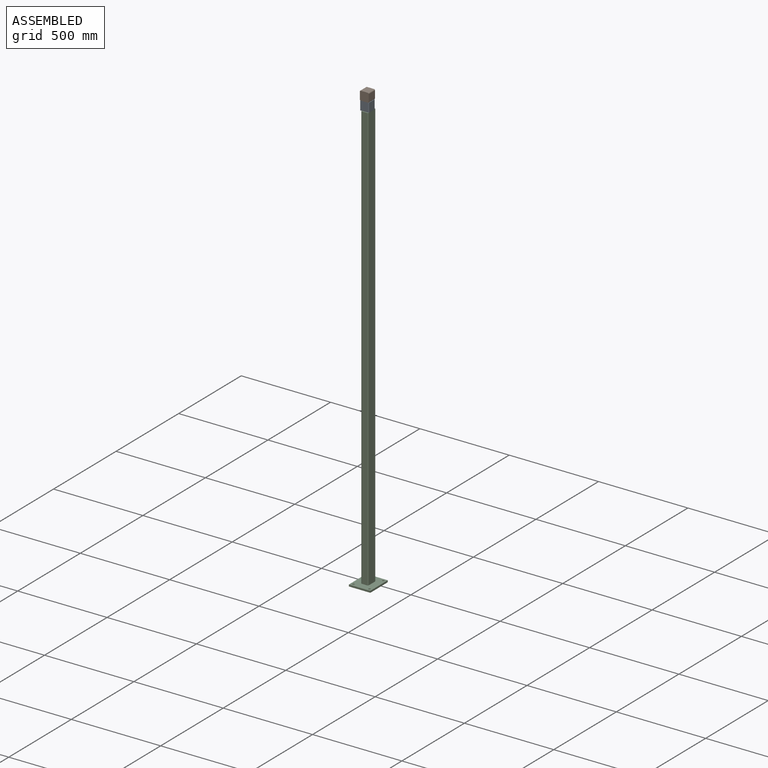
[diagram: assembled view]
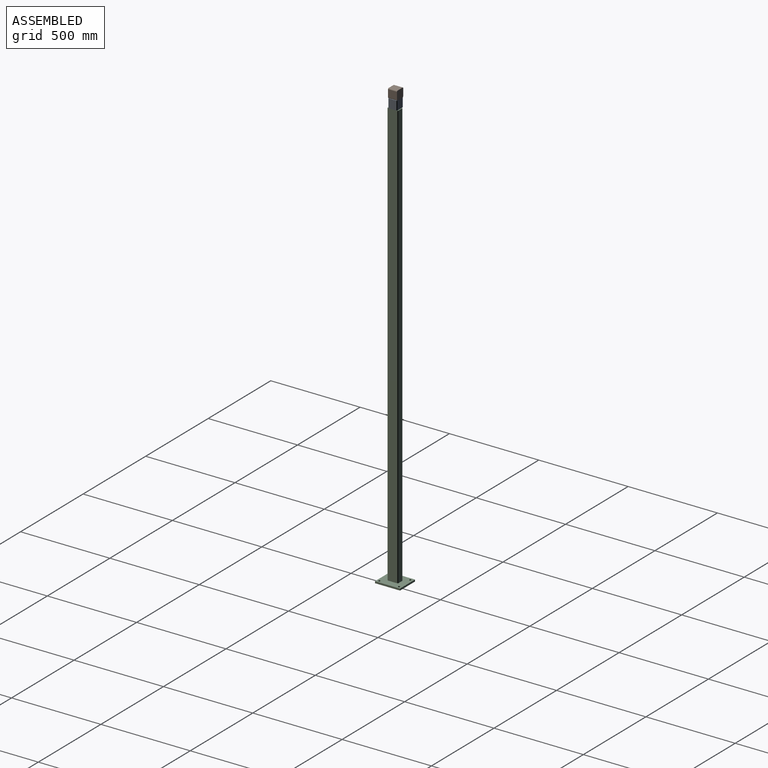
[diagram: assembled view, second angle]
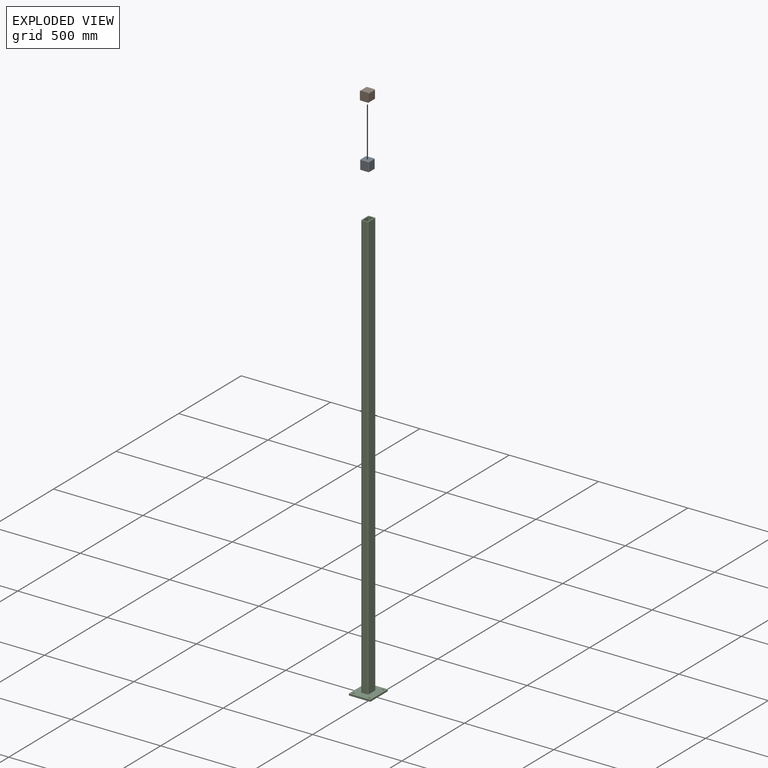
[diagram: exploded view]
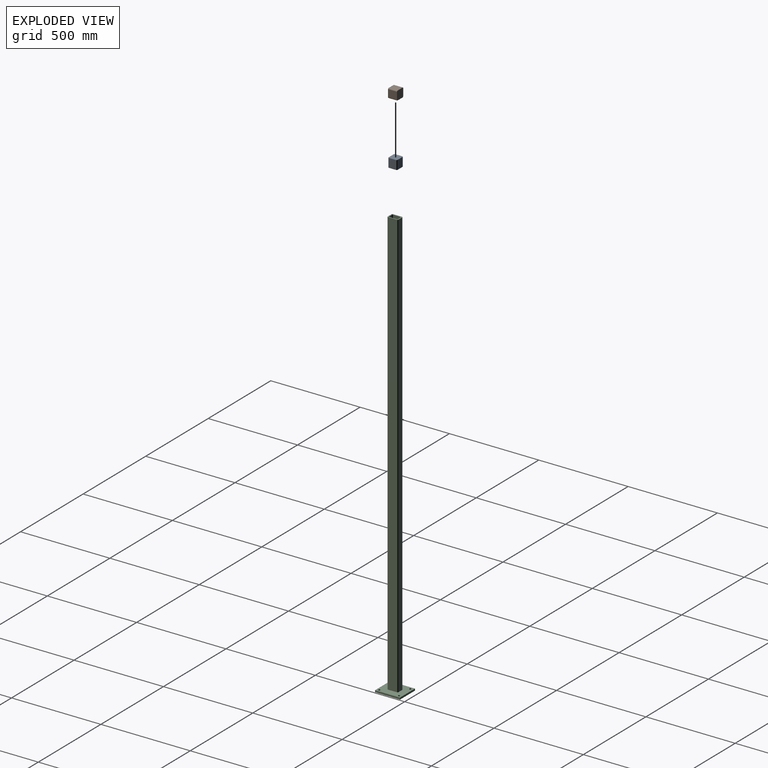
[diagram: exploded view, second angle]
ASSEMBLY  parts=3 mates=3
PART A: 10 faces, bbox 50x50x50 mm
  f0: cylinder r=5mm len=50mm, axis (0,0,-1), area 392.7mm2, adj f1,f7,f8,f9
  f1: plane 50x40mm, normal (0,-1,0), area 2000mm2, adj f0,f2,f8,f9
  f2: cylinder r=5mm len=50mm, axis (0,0,-1), area 392.7mm2, adj f1,f3,f8,f9
  f3: plane 50x40mm, normal (1,0,0), area 2000mm2, adj f2,f4,f8,f9
  f4: cylinder r=5mm len=50mm, axis (0,0,-1), area 392.7mm2, adj f3,f5,f8,f9
  f5: plane 50x40mm, normal (0,1,0), area 2000mm2, adj f4,f6,f8,f9
  f6: cylinder r=5mm len=50mm, axis (0,0,-1), area 392.7mm2, adj f5,f7,f8,f9
  f7: plane 50x40mm, normal (-1,0,0), area 2000mm2, adj f0,f6,f8,f9
  f8: plane 50x50mm, normal (0,0,1), area 2478.5mm2, adj f0,f1,f2,f3,f4,f5,f6,f7
  f9: plane 50x50mm, normal (0,0,-1), area 2478.5mm2, adj f0,f1,f2,f3,f4,f5,f6,f7
PART B: same geometry as A
PART C: 27 faces, bbox 140x120x2400 mm
  f0: plane 120x10mm, normal (-1,0,0), area 1200mm2, adj f1,f7,f8,f9
  f1: plane 140x10mm, normal (0,-1,0), area 1400mm2, adj f0,f2,f8,f9
  f2: plane 120x10mm, normal (1,0,0), area 1200mm2, adj f1,f7,f8,f9
  f3: cylinder r=5.5mm len=11mm, axis (0,0,-1), area 345.6mm2, adj f8,f9
  f4: cylinder r=5.5mm len=11mm, axis (0,0,-1), area 345.6mm2, adj f8,f9
  f5: cylinder r=5.5mm len=11mm, axis (0,0,-1), area 345.6mm2, adj f8,f9
  f6: cylinder r=5.5mm len=11mm, axis (0,0,-1), area 345.6mm2, adj f8,f9
  f7: plane 140x10mm, normal (0,1,0), area 1400mm2, adj f0,f2,f8,f9
  f8: plane 140x120mm, normal (0,0,1), area 14041.3mm2, adj f0,f1,f2,f3,f4,f5,f6,f7
  f9: plane 140x120mm, normal (0,0,-1), area 14941.3mm2, adj f0,f1,f2,f3,f4,f5,f6,f7
  f10: plane 2390x50mm, normal (0,-1,0), area 119500mm2, adj f8,f14,f15,f26
  f11: plane 2390x30mm, normal (-1,0,0), area 71700mm2, adj f8,f14,f17,f26
  f12: plane 2390x50mm, normal (0,1,0), area 119500mm2, adj f8,f16,f17,f26
  f13: plane 2390x30mm, normal (1,0,0), area 71700mm2, adj f8,f15,f16,f26
  f14: cylinder r=5mm len=2390mm, axis (0,0,-1), area 18771mm2, adj f8,f10,f11,f26
  f15: cylinder r=5mm len=2390mm, axis (0,0,-1), area 18771mm2, adj f8,f10,f13,f26
  f16: cylinder r=5mm len=2390mm, axis (0,0,-1), area 18771mm2, adj f8,f12,f13,f26
  f17: cylinder r=5mm len=2390mm, axis (0,0,-1), area 18771mm2, adj f8,f11,f12,f26
  f18: plane 2400x40mm, normal (0,1,0), area 96000mm2, adj f9,f19,f25,f26
  f19: cylinder r=5mm len=2400mm, axis (0,0,-1), area 18849.6mm2, adj f9,f18,f20,f26
  f20: plane 2400x20mm, normal (1,0,0), area 48000mm2, adj f9,f19,f21,f26
  f21: cylinder r=5mm len=2400mm, axis (0,0,-1), area 18849.6mm2, adj f9,f20,f22,f26
  f22: plane 2400x40mm, normal (0,-1,0), area 96000mm2, adj f9,f21,f23,f26
  f23: cylinder r=5mm len=2400mm, axis (0,0,-1), area 18849.6mm2, adj f9,f22,f24,f26
  f24: plane 2400x20mm, normal (-1,0,0), area 48000mm2, adj f9,f23,f25,f26
  f25: cylinder r=5mm len=2400mm, axis (0,0,-1), area 18849.6mm2, adj f9,f18,f24,f26
  f26: plane 60x40mm, normal (0,0,1), area 900mm2, adj f10,f11,f12,f13,f14,f15,f16,f17
PLACE A rot(axis=(0,0,1),90deg) t=(-4.97,-53.94,-65.57)mm fixed
PLACE B rot(axis=(-1,0,0),90deg) t=(-4.97,-78.94,9.43)mm
PLACE C rot(axis=(0,0,-1),90deg) t=(0.03,-53.94,-2465.57)mm
MATE planar A.f1 <-> C.f12  axis (1,0,0) through (20.03,-53.94,-65.57)mm
MATE planar B.f5 <-> A.f8  axis (0,0,-1) through (-4.97,-53.94,-15.57)mm
MATE planar A.f9 <-> C.f26  axis (0,0,-1) through (-4.97,-28.94,-65.57)mm
